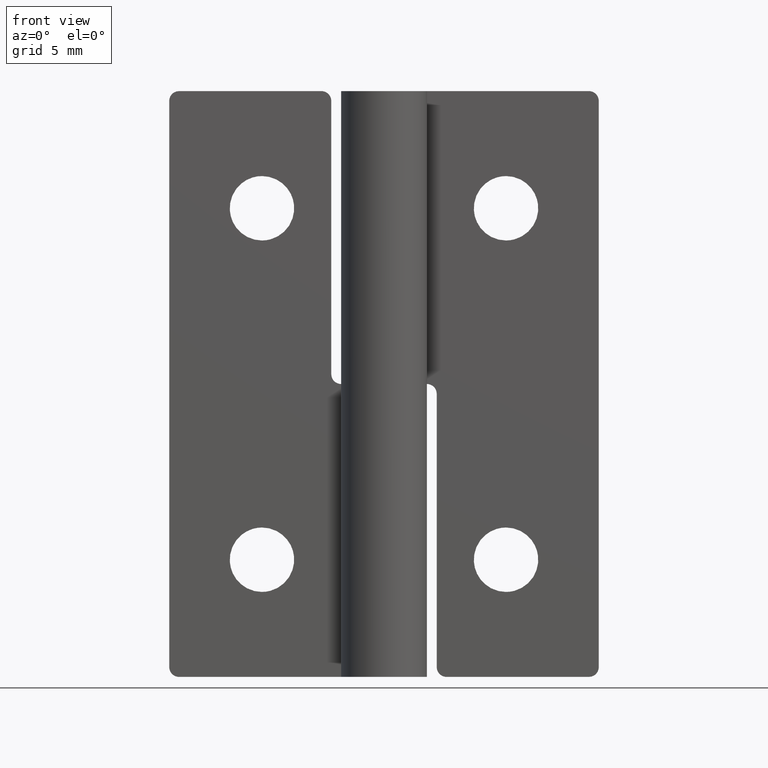
[diagram: clean part render]
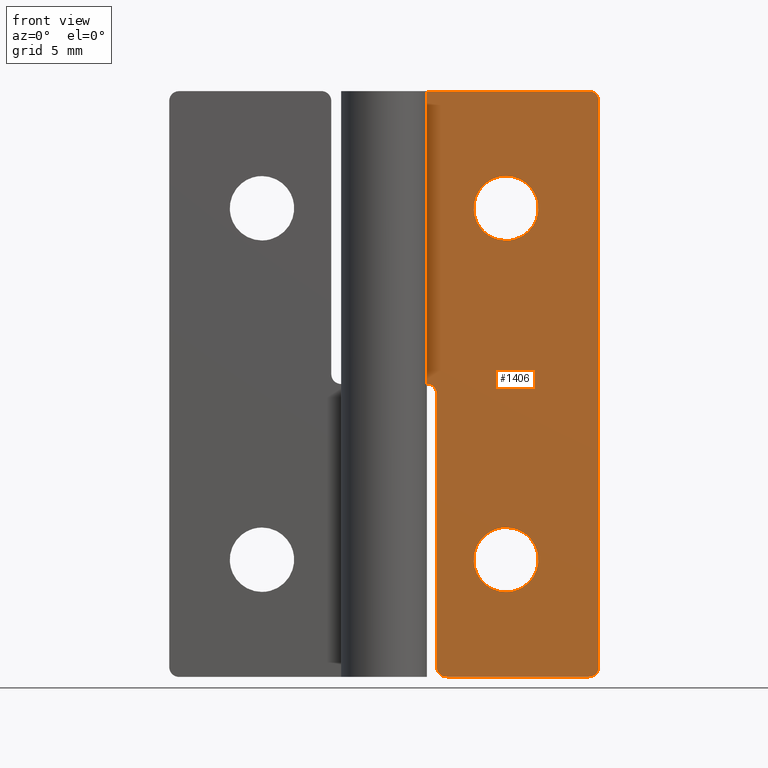
[diagram: same view with one face highlighted and labeled with its STEP entity id]
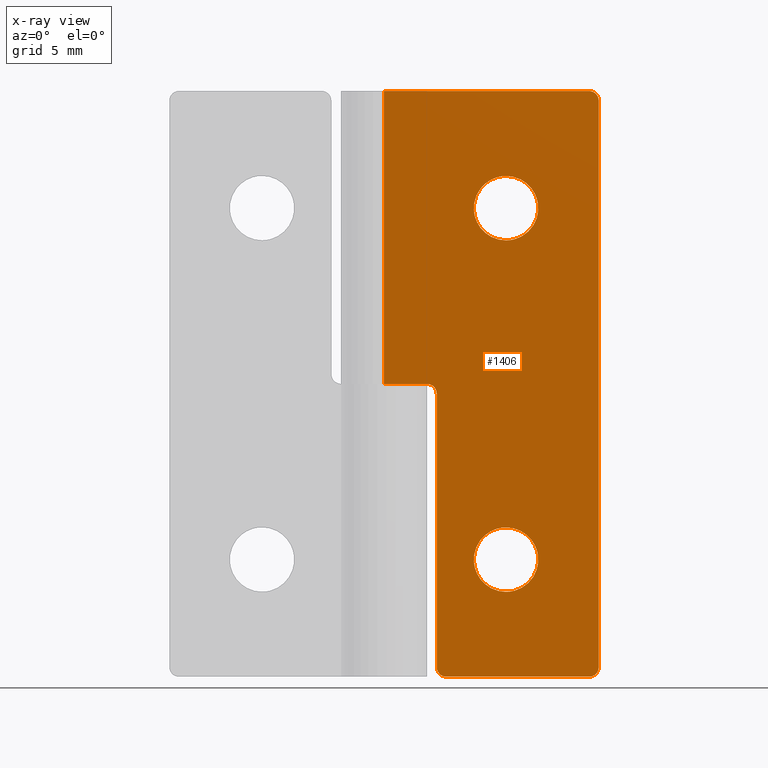
[diagram: x-ray of the same camera — body ghosted, the highlighted face saturated]
A machine part, front view. The second image highlights one B-rep face of the part: STEP entity #1406.
The next image is the same camera in x-ray: the body ghosted, the highlighted face saturated — about 0% of this face is hidden behind the body in this view.
In plain terms, the highlighted face is a freeform B-spline surface patch.
Its self-contained STEP definition (entity closure, byte-faithful):
#493=CARTESIAN_POINT('',(4.603077582607618,1.0,23.899269909707009));
#494=VERTEX_POINT('',#493);
#500=CARTESIAN_POINT('',(6.250000000000000,1.0,22.350000000000001));
#501=VERTEX_POINT('',#500);
#502=CARTESIAN_POINT('',(6.250000000000000,1.0,22.350000000000001));
#503=CARTESIAN_POINT('',(4.697834989719819,1.0,22.350000000000001));
#504=CARTESIAN_POINT('',(4.603077582607618,1.0,23.899269909707009));
#512=(BOUNDED_CURVE()B_SPLINE_CURVE(2,(#502,#503,#504),.UNSPECIFIED.,.F.,.U.)B_SPLINE_CURVE_WITH_KNOTS((3,3),(0.500000000000000,0.739332962229295),.UNSPECIFIED.)CURVE()GEOMETRIC_REPRESENTATION_ITEM()RATIONAL_B_SPLINE_CURVE((1.0,0.719603993298013,0.976072041646040))REPRESENTATION_ITEM(''));
#513=EDGE_CURVE('',#501,#494,#512,.T.);
#515=CARTESIAN_POINT('',(7.888466040848774,1.0,24.194753775259649));
#516=VERTEX_POINT('',#515);
#517=CARTESIAN_POINT('',(7.888466040848774,1.0,24.194753775259652));
#518=CARTESIAN_POINT('',(7.900000000000000,1.0,24.097718427128928));
#519=CARTESIAN_POINT('',(7.900000000000000,1.0,24.0));
#520=CARTESIAN_POINT('',(7.900000000000000,1.0,22.350000000000001));
#521=CARTESIAN_POINT('',(6.250000000000000,1.0,22.350000000000001));
#529=(BOUNDED_CURVE()B_SPLINE_CURVE(2,(#517,#518,#519,#520,#521),.UNSPECIFIED.,.F.,.U.)B_SPLINE_CURVE_WITH_KNOTS((3,2,3),(0.229562753243201,0.250000000000000,0.500000000000000),.UNSPECIFIED.)CURVE()GEOMETRIC_REPRESENTATION_ITEM()RATIONAL_B_SPLINE_CURVE((0.956027302466078,0.976056276054865,1.0,0.707106781186548,1.0))REPRESENTATION_ITEM(''));
#530=EDGE_CURVE('',#516,#501,#529,.T.);
#578=CARTESIAN_POINT('',(6.250000000000000,1.0,25.649999999999999));
#579=VERTEX_POINT('',#578);
#580=CARTESIAN_POINT('',(6.250000000000000,1.0,25.649999999999999));
#581=CARTESIAN_POINT('',(7.715490410514693,1.0,25.650000000000006));
#582=CARTESIAN_POINT('',(7.888466040848774,1.0,24.194753775259652));
#590=(BOUNDED_CURVE()B_SPLINE_CURVE(2,(#580,#581,#582),.UNSPECIFIED.,.F.,.U.)B_SPLINE_CURVE_WITH_KNOTS((3,3),(0.0,0.229562753243201),.UNSPECIFIED.)CURVE()GEOMETRIC_REPRESENTATION_ITEM()RATIONAL_B_SPLINE_CURVE((1.0,0.731050505131682,0.956027302466078))REPRESENTATION_ITEM(''));
#591=EDGE_CURVE('',#579,#516,#590,.T.);
#593=CARTESIAN_POINT('',(4.603077582607618,1.0,23.899269909707009));
#594=CARTESIAN_POINT('',(4.600000000000000,1.0,23.949587940496684));
#595=CARTESIAN_POINT('',(4.600000000000000,1.0,24.0));
#596=CARTESIAN_POINT('',(4.599999999999999,1.0,25.650000000000006));
#597=CARTESIAN_POINT('',(6.250000000000000,1.0,25.649999999999999));
#605=(BOUNDED_CURVE()B_SPLINE_CURVE(2,(#593,#594,#595,#596,#597),.UNSPECIFIED.,.F.,.U.)B_SPLINE_CURVE_WITH_KNOTS((3,2,3),(0.739332962229296,0.750000000000000,1.0),.UNSPECIFIED.)CURVE()GEOMETRIC_REPRESENTATION_ITEM()RATIONAL_B_SPLINE_CURVE((0.976072041646042,0.987502787888535,1.0,0.707106781186548,1.0))REPRESENTATION_ITEM(''));
#606=EDGE_CURVE('',#494,#579,#605,.T.);
#683=CARTESIAN_POINT('',(4.603077582607618,1.0,5.899269909707008));
#684=VERTEX_POINT('',#683);
#690=CARTESIAN_POINT('',(6.250000000000000,1.0,4.350000000000000));
#691=VERTEX_POINT('',#690);
#692=CARTESIAN_POINT('',(6.250000000000000,1.0,4.350000000000000));
#693=CARTESIAN_POINT('',(4.697834989719819,1.0,4.350000000000001));
#694=CARTESIAN_POINT('',(4.603077582607618,1.0,5.899269909707008));
#702=(BOUNDED_CURVE()B_SPLINE_CURVE(2,(#692,#693,#694),.UNSPECIFIED.,.F.,.U.)B_SPLINE_CURVE_WITH_KNOTS((3,3),(0.500000000000000,0.739332962229295),.UNSPECIFIED.)CURVE()GEOMETRIC_REPRESENTATION_ITEM()RATIONAL_B_SPLINE_CURVE((1.0,0.719603993298013,0.976072041646040))REPRESENTATION_ITEM(''));
#703=EDGE_CURVE('',#691,#684,#702,.T.);
#705=CARTESIAN_POINT('',(7.888466040848774,1.0,6.194753775259649));
#706=VERTEX_POINT('',#705);
#707=CARTESIAN_POINT('',(7.888466040848774,1.0,6.194753775259649));
#708=CARTESIAN_POINT('',(7.900000000000001,1.0,6.097718427128930));
#709=CARTESIAN_POINT('',(7.900000000000000,1.0,6.0));
#710=CARTESIAN_POINT('',(7.900000000000000,1.0,4.350000000000000));
#711=CARTESIAN_POINT('',(6.250000000000000,1.0,4.350000000000000));
#719=(BOUNDED_CURVE()B_SPLINE_CURVE(2,(#707,#708,#709,#710,#711),.UNSPECIFIED.,.F.,.U.)B_SPLINE_CURVE_WITH_KNOTS((3,2,3),(0.229562753243201,0.250000000000000,0.500000000000000),.UNSPECIFIED.)CURVE()GEOMETRIC_REPRESENTATION_ITEM()RATIONAL_B_SPLINE_CURVE((0.956027302466078,0.976056276054865,1.0,0.707106781186548,1.0))REPRESENTATION_ITEM(''));
#720=EDGE_CURVE('',#706,#691,#719,.T.);
#768=CARTESIAN_POINT('',(6.250000000000000,1.0,7.650000000000000));
#769=VERTEX_POINT('',#768);
#770=CARTESIAN_POINT('',(6.250000000000000,1.0,7.650000000000000));
#771=CARTESIAN_POINT('',(7.715490410514692,1.0,7.649999999999999));
#772=CARTESIAN_POINT('',(7.888466040848774,1.0,6.194753775259649));
#780=(BOUNDED_CURVE()B_SPLINE_CURVE(2,(#770,#771,#772),.UNSPECIFIED.,.F.,.U.)B_SPLINE_CURVE_WITH_KNOTS((3,3),(0.0,0.229562753243201),.UNSPECIFIED.)CURVE()GEOMETRIC_REPRESENTATION_ITEM()RATIONAL_B_SPLINE_CURVE((1.0,0.731050505131682,0.956027302466078))REPRESENTATION_ITEM(''));
#781=EDGE_CURVE('',#769,#706,#780,.T.);
#783=CARTESIAN_POINT('',(4.603077582607618,1.0,5.899269909707009));
#784=CARTESIAN_POINT('',(4.600000000000000,1.0,5.949587940496680));
#785=CARTESIAN_POINT('',(4.600000000000000,1.0,6.0));
#786=CARTESIAN_POINT('',(4.599999999999999,1.0,7.650000000000000));
#787=CARTESIAN_POINT('',(6.250000000000000,1.0,7.650000000000000));
#795=(BOUNDED_CURVE()B_SPLINE_CURVE(2,(#783,#784,#785,#786,#787),.UNSPECIFIED.,.F.,.U.)B_SPLINE_CURVE_WITH_KNOTS((3,2,3),(0.739332962229296,0.750000000000000,1.0),.UNSPECIFIED.)CURVE()GEOMETRIC_REPRESENTATION_ITEM()RATIONAL_B_SPLINE_CURVE((0.976072041646042,0.987502787888535,1.0,0.707106781186548,1.0))REPRESENTATION_ITEM(''));
#796=EDGE_CURVE('',#684,#769,#795,.T.);
#822=CARTESIAN_POINT('',(2.700004000000000,1.0,0.500000000000014));
#823=VERTEX_POINT('',#822);
#824=CARTESIAN_POINT('',(2.700004000000000,1.0,14.500000000000000));
#825=VERTEX_POINT('',#824);
#826=CARTESIAN_POINT('',(2.700004000000000,1.0,0.500000000000014));
#827=CARTESIAN_POINT('',(2.700004000000000,1.0,14.500000000000000));
#828=QUASI_UNIFORM_CURVE('',1,(#826,#827),.UNSPECIFIED.,.F.,.U.);
#829=EDGE_CURVE('',#823,#825,#828,.T.);
#867=CARTESIAN_POINT('',(2.200004000000000,1.0,15.0));
#868=VERTEX_POINT('',#867);
#869=CARTESIAN_POINT('',(2.700004000000000,1.0,14.500000000000000));
#870=CARTESIAN_POINT('',(2.700004000000001,1.0,15.000000000000009));
#871=CARTESIAN_POINT('',(2.200004000000000,1.0,15.0));
#879=(BOUNDED_CURVE()B_SPLINE_CURVE(2,(#869,#870,#871),.UNSPECIFIED.,.F.,.U.)CURVE()GEOMETRIC_REPRESENTATION_ITEM()QUASI_UNIFORM_CURVE()RATIONAL_B_SPLINE_CURVE((1.0,0.707106781186548,1.0))REPRESENTATION_ITEM(''));
#880=EDGE_CURVE('',#825,#868,#879,.T.);
#919=CARTESIAN_POINT('',(0.0,1.0,15.0));
#920=VERTEX_POINT('',#919);
#921=CARTESIAN_POINT('',(2.200004000000000,1.0,15.0));
#922=CARTESIAN_POINT('',(0.0,1.0,15.0));
#923=QUASI_UNIFORM_CURVE('',1,(#921,#922),.UNSPECIFIED.,.F.,.U.);
#924=EDGE_CURVE('',#868,#920,#923,.T.);
#990=CARTESIAN_POINT('',(11.0,1.0,29.500000000000000));
#991=VERTEX_POINT('',#990);
#992=CARTESIAN_POINT('',(10.500000000000000,1.0,30.0));
#993=VERTEX_POINT('',#992);
#994=CARTESIAN_POINT('',(11.0,1.0,29.500000000000000));
#995=CARTESIAN_POINT('',(11.000000000000002,1.0,30.000000000000004));
#996=CARTESIAN_POINT('',(10.500000000000000,1.0,30.0));
#1004=(BOUNDED_CURVE()B_SPLINE_CURVE(2,(#994,#995,#996),.UNSPECIFIED.,.F.,.U.)CURVE()GEOMETRIC_REPRESENTATION_ITEM()QUASI_UNIFORM_CURVE()RATIONAL_B_SPLINE_CURVE((1.0,0.707106781186548,1.0))REPRESENTATION_ITEM(''));
#1005=EDGE_CURVE('',#991,#993,#1004,.T.);
#1051=CARTESIAN_POINT('',(10.500000000000000,1.0,1.421085E-014));
#1052=VERTEX_POINT('',#1051);
#1053=CARTESIAN_POINT('',(11.0,1.0,0.500000000000014));
#1054=VERTEX_POINT('',#1053);
#1055=CARTESIAN_POINT('',(10.500000000000000,1.0,1.398621E-014));
#1056=CARTESIAN_POINT('',(11.000000000000002,1.0,1.398621E-014));
#1057=CARTESIAN_POINT('',(11.0,1.0,0.500000000000014));
#1065=(BOUNDED_CURVE()B_SPLINE_CURVE(2,(#1055,#1056,#1057),.UNSPECIFIED.,.F.,.U.)CURVE()GEOMETRIC_REPRESENTATION_ITEM()QUASI_UNIFORM_CURVE()RATIONAL_B_SPLINE_CURVE((1.0,0.707106781186548,1.0))REPRESENTATION_ITEM(''));
#1066=EDGE_CURVE('',#1052,#1054,#1065,.T.);
#1112=CARTESIAN_POINT('',(3.200004000000000,1.0,0.0));
#1113=VERTEX_POINT('',#1112);
#1114=CARTESIAN_POINT('',(2.700004000000000,1.0,0.500000000000014));
#1115=CARTESIAN_POINT('',(2.700004000000001,1.0,1.398621E-014));
#1116=CARTESIAN_POINT('',(3.200004000000000,1.0,0.0));
#1124=(BOUNDED_CURVE()B_SPLINE_CURVE(2,(#1114,#1115,#1116),.UNSPECIFIED.,.F.,.U.)CURVE()GEOMETRIC_REPRESENTATION_ITEM()QUASI_UNIFORM_CURVE()RATIONAL_B_SPLINE_CURVE((1.0,0.707106781186548,1.0))REPRESENTATION_ITEM(''));
#1125=EDGE_CURVE('',#823,#1113,#1124,.T.);
#1156=CARTESIAN_POINT('',(0.0,1.0,30.0));
#1157=VERTEX_POINT('',#1156);
#1158=CARTESIAN_POINT('',(0.0,1.0,30.0));
#1159=CARTESIAN_POINT('',(10.500000000000000,1.0,30.0));
#1160=QUASI_UNIFORM_CURVE('',1,(#1158,#1159),.UNSPECIFIED.,.F.,.U.);
#1161=EDGE_CURVE('',#1157,#993,#1160,.T.);
#1297=CARTESIAN_POINT('',(0.0,1.0,15.0));
#1298=CARTESIAN_POINT('',(0.0,1.0,30.0));
#1299=QUASI_UNIFORM_CURVE('',1,(#1297,#1298),.UNSPECIFIED.,.F.,.U.);
#1300=EDGE_CURVE('',#920,#1157,#1299,.T.);
#1313=CARTESIAN_POINT('',(3.200004000000000,1.0,0.0));
#1314=CARTESIAN_POINT('',(10.500000000000000,1.0,1.421085E-014));
#1315=QUASI_UNIFORM_CURVE('',1,(#1313,#1314),.UNSPECIFIED.,.F.,.U.);
#1316=EDGE_CURVE('',#1113,#1052,#1315,.T.);
#1338=CARTESIAN_POINT('',(11.0,1.0,0.500000000000014));
#1339=CARTESIAN_POINT('',(11.0,1.0,29.500000000000000));
#1340=QUASI_UNIFORM_CURVE('',1,(#1338,#1339),.UNSPECIFIED.,.F.,.U.);
#1341=EDGE_CURVE('',#1054,#991,#1340,.T.);
#1377=CARTESIAN_POINT('',(-0.549449978679866,1.0,31.498499941854181));
#1378=CARTESIAN_POINT('',(-0.549449978679866,1.0,-1.498500746516883));
#1379=CARTESIAN_POINT('',(11.549450273722860,1.0,31.498499941854181));
#1380=CARTESIAN_POINT('',(11.549450273722860,1.0,-1.498500746516883));
#1381=B_SPLINE_SURFACE_WITH_KNOTS('',1,1,((#1377,#1379),(#1378,#1380)),.UNSPECIFIED.,.F.,.F.,.U.,(2,2),(2,2),(0.0,32.997000688371060),(0.0,12.098900252402730),.UNSPECIFIED.);
#1382=ORIENTED_EDGE('',*,*,#924,.F.);
#1383=ORIENTED_EDGE('',*,*,#880,.F.);
#1384=ORIENTED_EDGE('',*,*,#829,.F.);
#1385=ORIENTED_EDGE('',*,*,#1125,.T.);
#1386=ORIENTED_EDGE('',*,*,#1316,.T.);
#1387=ORIENTED_EDGE('',*,*,#1066,.T.);
#1388=ORIENTED_EDGE('',*,*,#1341,.T.);
#1389=ORIENTED_EDGE('',*,*,#1005,.T.);
#1390=ORIENTED_EDGE('',*,*,#1161,.F.);
#1391=ORIENTED_EDGE('',*,*,#1300,.F.);
#1392=EDGE_LOOP('',(#1382,#1383,#1384,#1385,#1386,#1387,#1388,#1389,#1390,#1391));
#1393=FACE_OUTER_BOUND('',#1392,.T.);
#1394=ORIENTED_EDGE('',*,*,#703,.T.);
#1395=ORIENTED_EDGE('',*,*,#796,.T.);
#1396=ORIENTED_EDGE('',*,*,#781,.T.);
#1397=ORIENTED_EDGE('',*,*,#720,.T.);
#1398=EDGE_LOOP('',(#1394,#1395,#1396,#1397));
#1399=FACE_BOUND('',#1398,.T.);
#1400=ORIENTED_EDGE('',*,*,#513,.T.);
#1401=ORIENTED_EDGE('',*,*,#606,.T.);
#1402=ORIENTED_EDGE('',*,*,#591,.T.);
#1403=ORIENTED_EDGE('',*,*,#530,.T.);
#1404=EDGE_LOOP('',(#1400,#1401,#1402,#1403));
#1405=FACE_BOUND('',#1404,.T.);
#1406=ADVANCED_FACE('',(#1393,#1399,#1405),#1381,.T.);